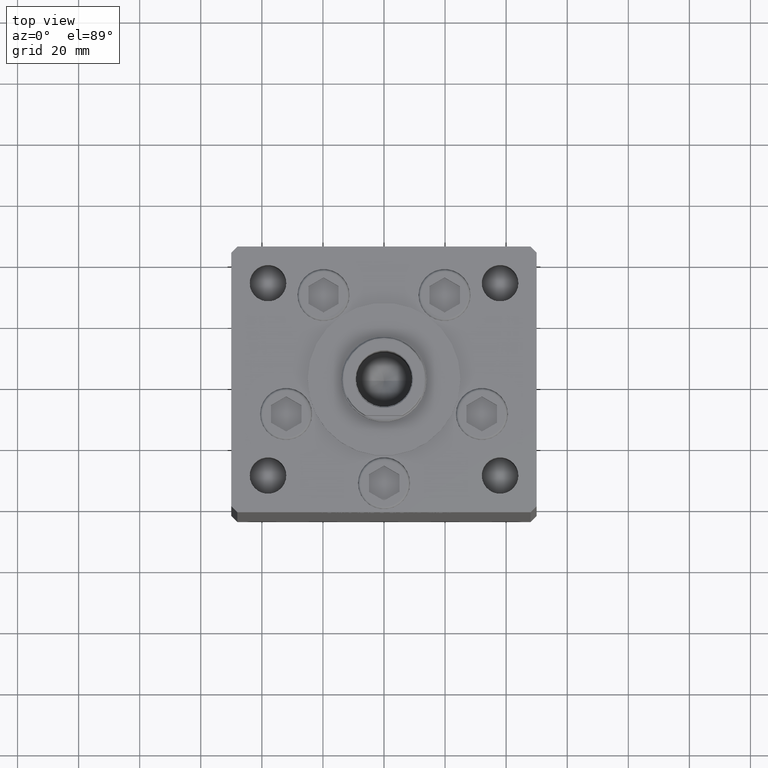
[diagram: clean part render]
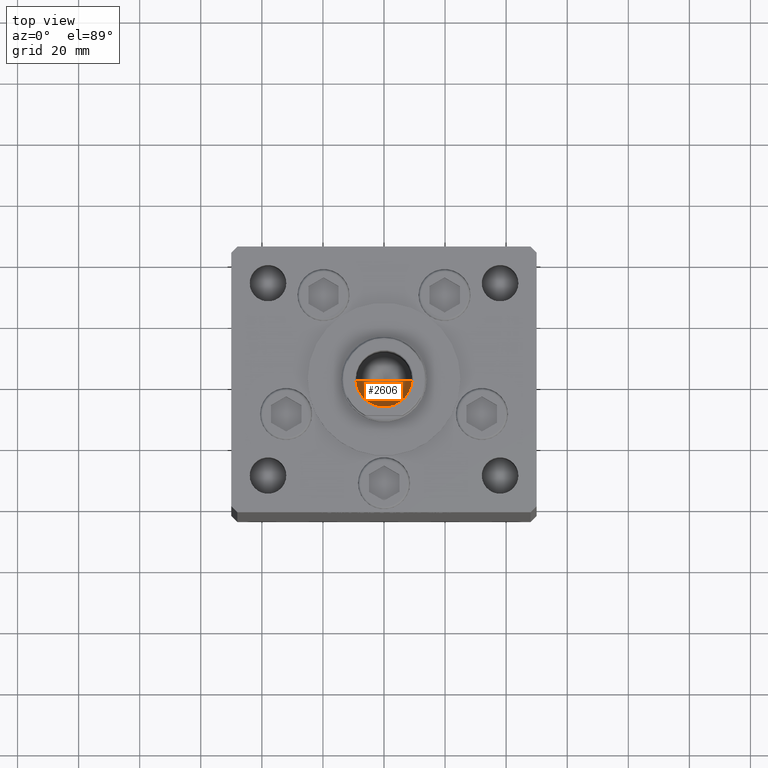
[diagram: same view with one face highlighted and labeled with its STEP entity id]
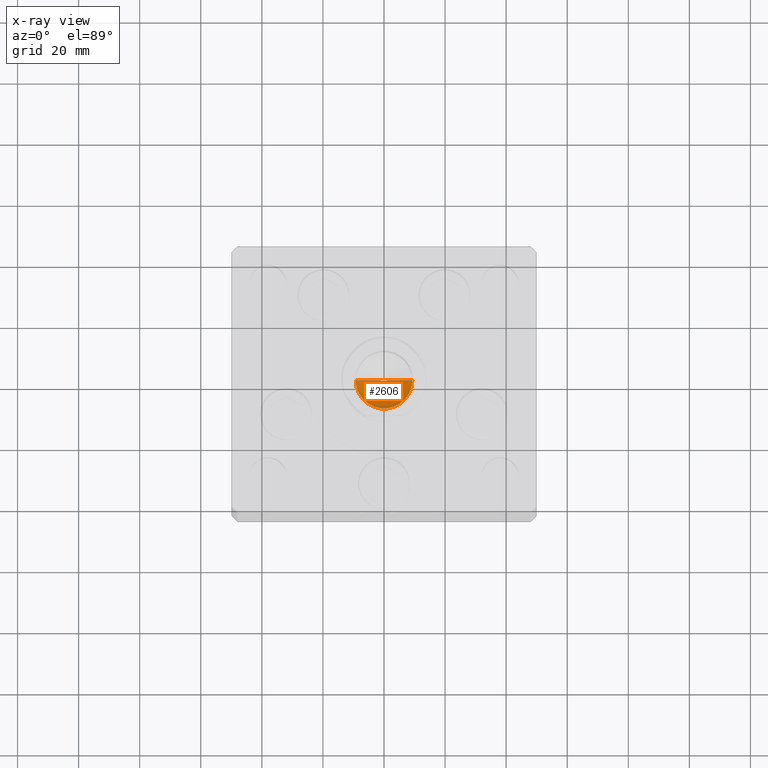
[diagram: x-ray of the same camera — body ghosted, the highlighted face saturated]
A machine part, top view. The second image highlights one B-rep face of the part: STEP entity #2606.
The next image is the same camera in x-ray: the body ghosted, the highlighted face saturated — about 9% of this face is hidden behind the body in this view.
In plain terms, the highlighted conical surface has half-angle 59 deg.
Its self-contained STEP definition (entity closure, byte-faithful):
#2606 = ADVANCED_FACE ( 'NONE', ( #13713 ), #26091, .F. ) ;
#4199 = CARTESIAN_POINT ( 'NONE',  ( 0.000000000000000000, 0.000000000000000000, 130.2500000000000000 ) ) ;
#4766 = CARTESIAN_POINT ( 'NONE',  ( 9.249999999999994671, 0.000000000000000000, 130.2500000000000000 ) ) ;
#6245 = EDGE_CURVE ( 'NONE', #34692, #35277, #29553, .T. ) ;
#6870 = DIRECTION ( 'NONE',  ( -0.000000000000000000, -0.000000000000000000, 1.000000000000000000 ) ) ;
#10246 = EDGE_LOOP ( 'NONE', ( #24901, #30882, #16202 ) ) ;
#12675 = CARTESIAN_POINT ( 'NONE',  ( -1.046994375366439223E-14, 0.000000000000000000, 124.6920392739950643 ) ) ;
#13644 = CARTESIAN_POINT ( 'NONE',  ( 9.249999999999994671, 0.000000000000000000, 130.2500000000000000 ) ) ;
#13713 = FACE_OUTER_BOUND ( 'NONE', #10246, .T. ) ;
#16001 = AXIS2_PLACEMENT_3D ( 'NONE', #29810, #6870, #46710 ) ;
#16202 = ORIENTED_EDGE ( 'NONE', *, *, #6245, .T. ) ;
#24901 = ORIENTED_EDGE ( 'NONE', *, *, #42225, .F. ) ;
#26091 = CONICAL_SURFACE ( 'NONE', #16001, 9.249999999999994671, 1.029744258676653423 ) ;
#28462 = DIRECTION ( 'NONE',  ( 1.000000000000000000, 0.000000000000000000, 0.000000000000000000 ) ) ;
#29553 = CIRCLE ( 'NONE', #36297, 9.249999999999994671 ) ;
#29810 = CARTESIAN_POINT ( 'NONE',  ( 0.000000000000000000, 0.000000000000000000, 130.2500000000000000 ) ) ;
#30882 = ORIENTED_EDGE ( 'NONE', *, *, #41435, .T. ) ;
#32132 = LINE ( 'NONE', #51678, #45937 ) ;
#34692 = VERTEX_POINT ( 'NONE', #35647 ) ;
#35277 = VERTEX_POINT ( 'NONE', #4766 ) ;
#35647 = CARTESIAN_POINT ( 'NONE',  ( -9.249999999999994671, 1.132798289211300909E-15, 130.2500000000000000 ) ) ;
#36297 = AXIS2_PLACEMENT_3D ( 'NONE', #4199, #43783, #28462 ) ;
#40847 = LINE ( 'NONE', #13644, #48122 ) ;
#41435 = EDGE_CURVE ( 'NONE', #52201, #34692, #32132, .T. ) ;
#42225 = EDGE_CURVE ( 'NONE', #52201, #35277, #40847, .T. ) ;
#43502 = DIRECTION ( 'NONE',  ( -0.8571673007021117785, 1.049727191138617956E-16, 0.5150380749100550437 ) ) ;
#43783 = DIRECTION ( 'NONE',  ( -0.000000000000000000, -0.000000000000000000, 1.000000000000000000 ) ) ;
#44801 = DIRECTION ( 'NONE',  ( 0.8571673007021117785, 0.000000000000000000, 0.5150380749100550437 ) ) ;
#45937 = VECTOR ( 'NONE', #43502, 1000.000000000000000 ) ;
#46710 = DIRECTION ( 'NONE',  ( 1.000000000000000000, 0.000000000000000000, 0.000000000000000000 ) ) ;
#48122 = VECTOR ( 'NONE', #44801, 1000.000000000000000 ) ;
#51678 = CARTESIAN_POINT ( 'NONE',  ( -9.249999999999994671, 1.132798289211300909E-15, 130.2500000000000000 ) ) ;
#52201 = VERTEX_POINT ( 'NONE', #12675 ) ;